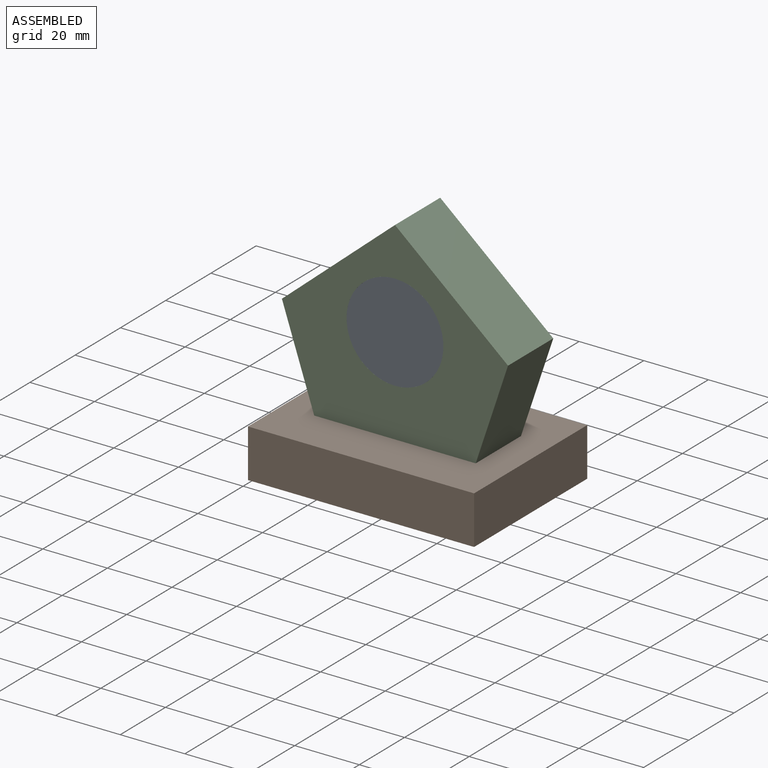
[diagram: assembled view]
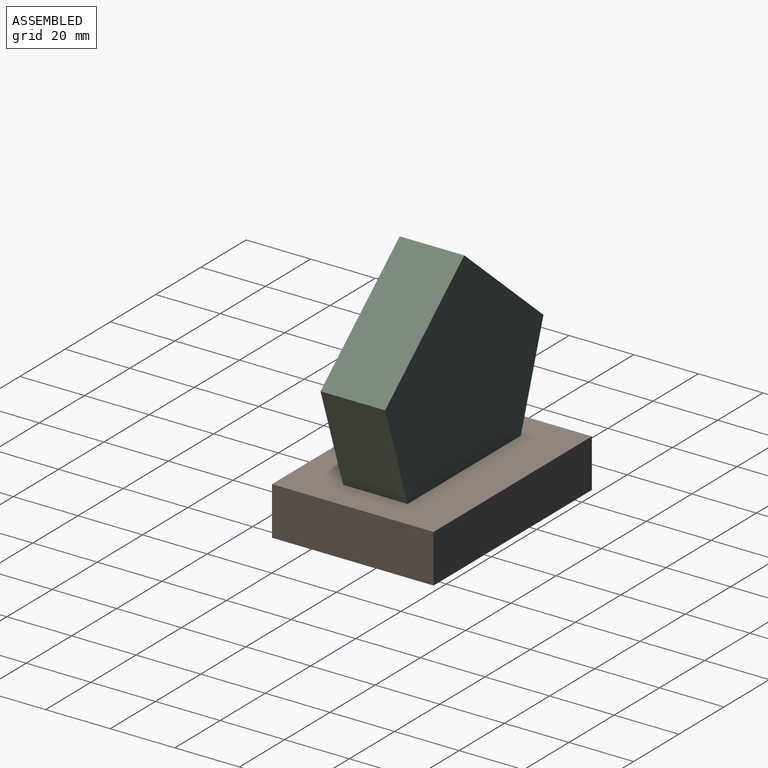
[diagram: assembled view, second angle]
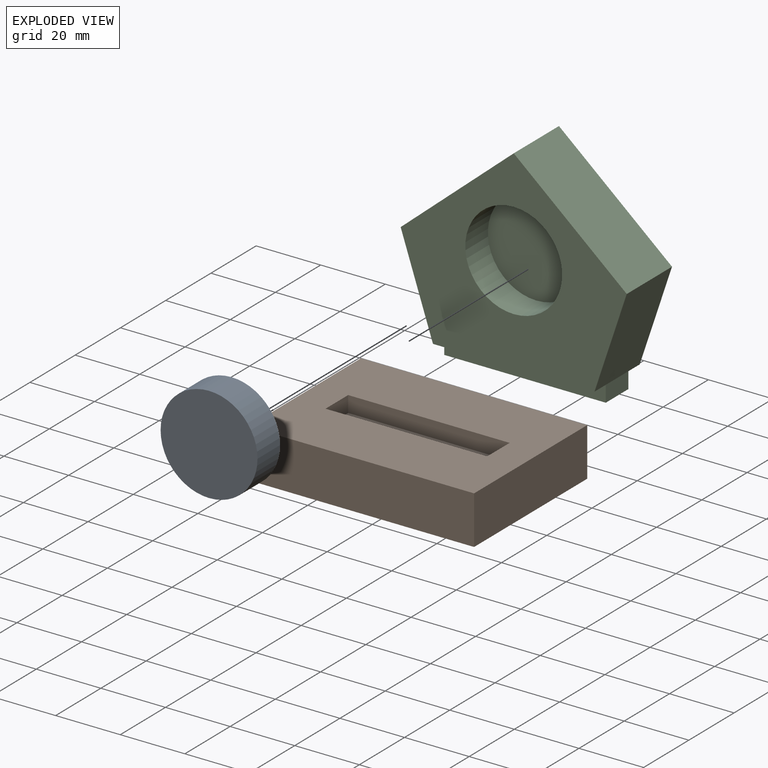
[diagram: exploded view]
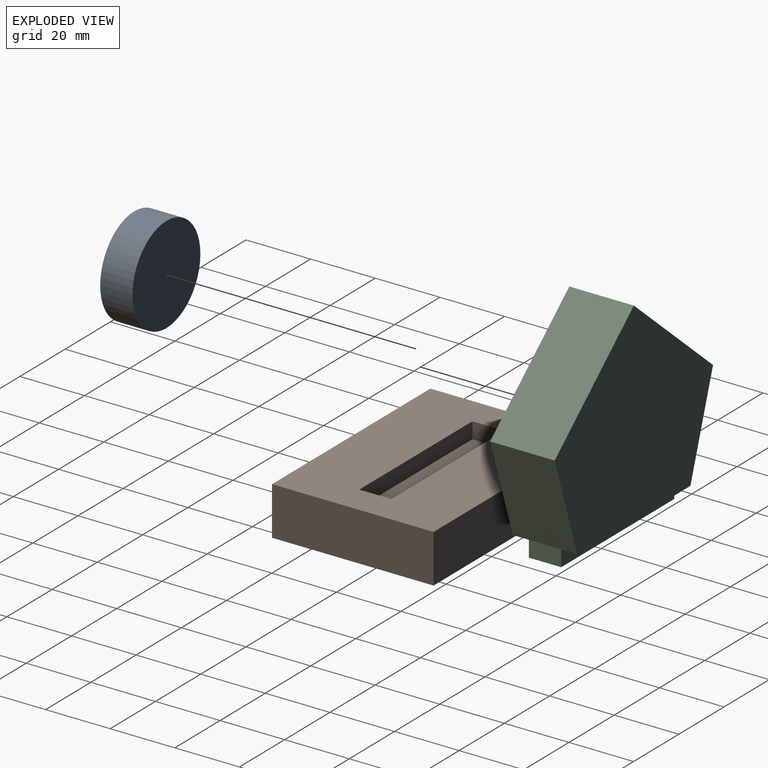
[diagram: exploded view, second angle]
ASSEMBLY  parts=3 mates=2
PART A: 3 faces, bbox 30x10x30 mm
  f0: cylinder r=15mm len=30mm, axis (0,1,0), area 942.5mm2, adj f1,f2
  f1: plane 30x30mm, normal (0,-1,0), area 706.9mm2, adj f0
  f2: plane 30x30mm, normal (0,1,0), area 706.9mm2, adj f0
PART B: 11 faces, bbox 70x50x15 mm
  f0: plane 70x50mm, normal (0,0,1), area 3000mm2, adj f1,f3,f4,f5,f6,f7,f8,f9
  f1: plane 50x15mm, normal (-1,0,0), area 750mm2, adj f0,f2,f4,f5
  f2: plane 70x50mm, normal (0,0,-1), area 3500mm2, adj f1,f3,f4,f5
  f3: plane 50x15mm, normal (1,0,0), area 750mm2, adj f0,f2,f4,f5
  f4: plane 70x15mm, normal (0,-1,0), area 1050mm2, adj f0,f1,f2,f3
  f5: plane 70x15mm, normal (0,1,0), area 1050mm2, adj f0,f1,f2,f3
  f6: plane 50x5mm, normal (0,-1,0), area 250mm2, adj f0,f7,f9,f10
  f7: plane 10x5mm, normal (1,0,0), area 50mm2, adj f0,f6,f8,f10
  f8: plane 50x5mm, normal (0,1,0), area 250mm2, adj f0,f7,f9,f10
  f9: plane 10x5mm, normal (-1,0,0), area 50mm2, adj f0,f6,f8,f10
  f10: plane 50x10mm, normal (0,0,1), area 500mm2, adj f6,f7,f8,f9
PART C: 15 faces, bbox 70x20x65 mm
  f0: plane 50x5mm, normal (0,0,-1), area 250mm2, adj f3,f5,f7,f11
  f1: plane 35x30mm, normal (0.65,0,0.76), area 922mm2, adj f2,f5,f6,f7
  f2: plane 35x30mm, normal (-0.65,0,0.76), area 922mm2, adj f1,f3,f6,f7
  f3: plane 30x20mm, normal (-0.95,0,-0.32), area 632.5mm2, adj f0,f2,f4,f6,f7,f10
  f4: plane 50x5mm, normal (0,0,-1), area 250mm2, adj f3,f5,f6,f13
  f5: plane 30x20mm, normal (0.95,0,-0.32), area 632.5mm2, adj f0,f1,f4,f6,f7,f12
  f6: plane 70x60mm, normal (0,-1,0), area 2143.1mm2, adj f1,f2,f3,f4,f5,f8
  f7: plane 70x60mm, normal (0,1,0), area 2850mm2, adj f0,f1,f2,f3,f5
  f8: cylinder r=15mm len=30mm, axis (0,-1,0), area 942.5mm2, adj f6,f9
  f9: plane 30x30mm, normal (0,-1,0), area 706.9mm2, adj f8
  f10: plane 10x5mm, normal (-1,0,0), area 50mm2, adj f3,f11,f13,f14
  f11: plane 50x5mm, normal (0,1,0), area 250mm2, adj f0,f10,f12,f14
  f12: plane 10x5mm, normal (1,0,0), area 50mm2, adj f5,f11,f13,f14
  f13: plane 50x5mm, normal (0,-1,0), area 250mm2, adj f4,f10,f12,f14
  f14: plane 50x10mm, normal (0,0,-1), area 500mm2, adj f10,f11,f12,f13
PLACE A t=(-11.33,-32.35,-1.2)mm
PLACE B t=(-11.33,-7.35,-38.7)mm
PLACE C t=(-11.33,-22.35,-1.2)mm
MATE fastened A.f0 <-> C.f8  axis (0,1,0) through (-11.33,-32.35,-1.2)mm
MATE fastened C.f14 <-> B.f10  axis (0,0,-1) through (-11.33,-32.35,-36.2)mm
